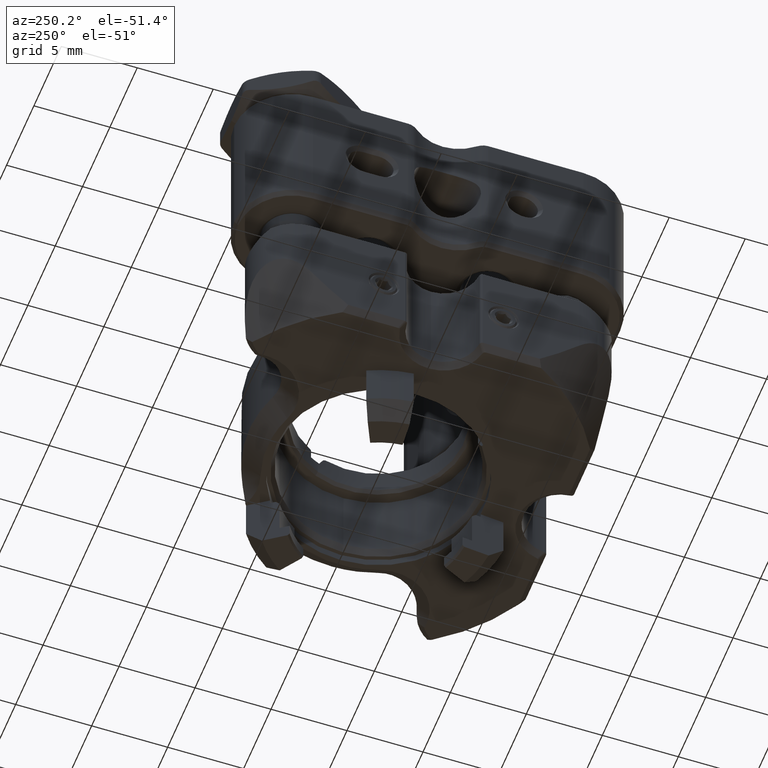
[diagram: clean part render]
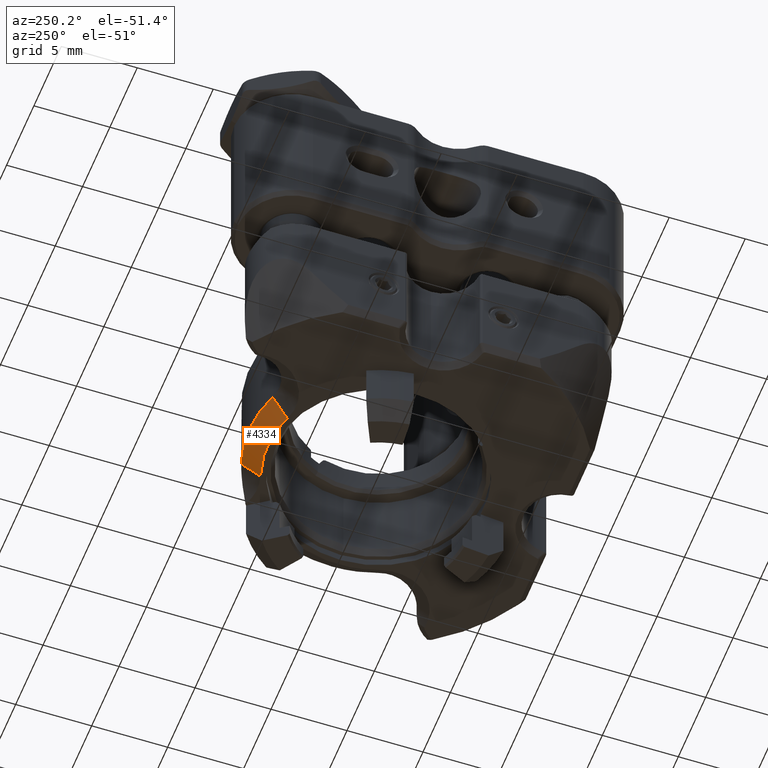
[diagram: same view with one face highlighted and labeled with its STEP entity id]
A machine part, auxiliary view. The second image highlights one B-rep face of the part: STEP entity #4334.
In plain terms, the highlighted face is a freeform B-spline surface patch.
Its self-contained STEP definition (entity closure, byte-faithful):
#80 = EDGE_LOOP ( 'NONE', ( #9677, #9014, #862, #12889 ) ) ;
#252 = CARTESIAN_POINT ( 'NONE',  ( -2.217990965958692051, 10.28925992224753649, 0.6828816415396518069 ) ) ;
#476 = CARTESIAN_POINT ( 'NONE',  ( -4.548259426275983230, 9.823417559774581420, 0.6828968990523115457 ) ) ;
#862 = ORIENTED_EDGE ( 'NONE', *, *, #875, .T. ) ;
#875 = EDGE_CURVE ( 'NONE', #15308, #6727, #12190, .T. ) ;
#881 = CARTESIAN_POINT ( 'NONE',  ( 0.2853970343089892170, 8.811679326182733973, 1.866899999999988013 ) ) ;
#1143 = CARTESIAN_POINT ( 'NONE',  ( -0.9979733131310214445, 9.065123467894492748, 1.866900000000005111 ) ) ;
#1193 = CARTESIAN_POINT ( 'NONE',  ( 1.761081315064200181, 11.66358740416938566, -1.308099999999951413 ) ) ;
#1296 = CARTESIAN_POINT ( 'NONE',  ( -4.320504478184080455, 9.901839877465969053, 0.6784670035059170434 ) ) ;
#1736 = CARTESIAN_POINT ( 'NONE',  ( -3.730594926594560157, 8.843909922356901987, 1.866899999999995563 ) ) ;
#2009 = CARTESIAN_POINT ( 'NONE',  ( -0.1349270293056910597, 8.919676375648553091, 1.866900000000012882 ) ) ;
#2084 = CARTESIAN_POINT ( 'NONE',  ( -2.362988505607624301, 9.084027184002549049, 1.866900000000006221 ) ) ;
#2169 = CARTESIAN_POINT ( 'NONE',  ( 1.204602745846881318, 10.10919601137224788, 0.3429000000000042570 ) ) ;
#2268 = CARTESIAN_POINT ( 'NONE',  ( -0.1349270293056913927, 8.919676375648551314, 1.866900000000004445 ) ) ;
#2342 = CARTESIAN_POINT ( 'NONE',  ( -1.254557659372109057, 10.28453546575927824, 0.6829036018526544183 ) ) ;
#2445 = VECTOR ( 'NONE', #12647, 1000.000000000000000 ) ;
#2537 = LINE ( 'NONE', #6368, #2445 ) ;
#2572 = CARTESIAN_POINT ( 'NONE',  ( -0.7761839495635659558, 10.24153473651399970, 0.6822515896997131124 ) ) ;
#2659 = CARTESIAN_POINT ( 'NONE',  ( -2.693195340204466159, 10.25096357718886075, 0.6821992226607210830 ) ) ;
#2926 = CARTESIAN_POINT ( 'NONE',  ( -4.018956716253071271, 8.750507744213882333, 1.866899999999997783 ) ) ;
#3297 = CARTESIAN_POINT ( 'NONE',  ( 1.090004933658522246, 9.789094101339115284, 0.6828968990523505145 ) ) ;
#3770 = CARTESIAN_POINT ( 'NONE',  ( -2.825789352589689774, 9.031824606264086341, 1.866899999999995119 ) ) ;
#4334 = ADVANCED_FACE ( 'NONE', ( #10526 ), #14470, .F. ) ;
#4414 = CARTESIAN_POINT ( 'NONE',  ( -3.282359656813834015, 8.950648278361187593, 1.866900000000000670 ) ) ;
#4495 = CARTESIAN_POINT ( 'NONE',  ( 1.040896855395677889, 10.16462014591518859, 0.3429000000000038684 ) ) ;
#4570 = CARTESIAN_POINT ( 'NONE',  ( -0.8341011717762030209, 10.58117806010155881, 0.3428999999999988169 ) ) ;
#4647 = CARTESIAN_POINT ( 'NONE',  ( -4.018956716253071271, 8.750507744213884109, 1.866900000000002002 ) ) ;
#4832 = CARTESIAN_POINT ( 'NONE',  ( -3.396191115844528596, 10.13508931598659224, 0.6818728438116777868 ) ) ;
#5229 = EDGE_CURVE ( 'NONE', #8213, #6727, #6776, .T. ) ;
#5698 = CARTESIAN_POINT ( 'NONE',  ( 0.7127323095001926179, 10.27572327051140633, 0.3429000000000030912 ) ) ;
#5773 = CARTESIAN_POINT ( 'NONE',  ( 0.5559593694894497951, 8.720071855187711662, 1.866899999999992898 ) ) ;
#6027 = CARTESIAN_POINT ( 'NONE',  ( -0.5633168964209411822, 9.005163656573071052, 1.866899999999993121 ) ) ;
#6029 = CARTESIAN_POINT ( 'NONE',  ( -4.548259426275983230, 9.823417559774581420, 0.6828968990523115457 ) ) ;
#6065 = DIRECTION ( 'NONE',  ( 0.2383342034394668463, 0.6657302813233646477, -0.7071067811865393571 ) ) ;
#6094 = CARTESIAN_POINT ( 'NONE',  ( 0.6909302204154994520, 8.674373187251783079, 1.866899999999993787 ) ) ;
#6255 = CARTESIAN_POINT ( 'NONE',  ( -1.898199977877247813, 9.106971716330461319, 1.866899999999993787 ) ) ;
#6368 = CARTESIAN_POINT ( 'NONE',  ( -5.196464612230376368, 11.70594211178919153, -1.308099999999962293 ) ) ;
#6727 = VERTEX_POINT ( 'NONE', #3297 ) ;
#6741 = CARTESIAN_POINT ( 'NONE',  ( -0.5633168964209415153, 9.005163656573069275, 1.866899999999993565 ) ) ;
#6776 = B_SPLINE_CURVE_WITH_KNOTS ( 'NONE', 3,
 ( #6029, #1296, #13659, #9887, #4832, #2659, #252, #2342, #2572, #14705, #8591, #11008, #13506, #7461 ),
 .UNSPECIFIED., .F., .F.,
 ( 4, 2, 2, 2, 2, 2, 4 ),
 ( 4.336808689942017736E-18, 0.0007124814486855053598, 0.001424962897371007684, 0.002849925794742012332, 0.004274888692113017197, 0.004987370140798520063, 0.005699851589484022929 ),
 .UNSPECIFIED. ) ;
#6893 = CARTESIAN_POINT ( 'NONE',  ( 0.6909302204154992300, 8.674373187251783079, 1.866899999999996007 ) ) ;
#6971 = CARTESIAN_POINT ( 'NONE',  ( -1.898199977877248479, 9.106971716330463096, 1.866899999999996673 ) ) ;
#7461 = CARTESIAN_POINT ( 'NONE',  ( 1.090004933658522246, 9.789094101339115284, 0.6828968990523505145 ) ) ;
#7520 = VERTEX_POINT ( 'NONE', #9242 ) ;
#8213 = VERTEX_POINT ( 'NONE', #476 ) ;
#8591 = CARTESIAN_POINT ( 'NONE',  ( 0.1698756059891217141, 10.06452244423931042, 0.6824680708776812432 ) ) ;
#8953 = EDGE_CURVE ( 'NONE', #7520, #15308, #10162, .T. ) ;
#9014 = ORIENTED_EDGE ( 'NONE', *, *, #8953, .T. ) ;
#9223 = CARTESIAN_POINT ( 'NONE',  ( -2.825789352589690218, 9.031824606264086341, 1.866899999999999116 ) ) ;
#9242 = CARTESIAN_POINT ( 'NONE',  ( -4.162785721828899277, 8.703920634261359979, 1.866900000000000226 ) ) ;
#9312 = CARTESIAN_POINT ( 'NONE',  ( -4.658951589221609346, 10.14489094347473852, 0.3429000000000019255 ) ) ;
#9465 = CARTESIAN_POINT ( 'NONE',  ( -0.3102867686213292009, 10.50892115175349417, 0.3429000000000022585 ) ) ;
#9677 = ORIENTED_EDGE ( 'NONE', *, *, #9985, .F. ) ;
#9887 = CARTESIAN_POINT ( 'NONE',  ( -3.628904713558260386, 10.08667199295976680, 0.6826927958947750508 ) ) ;
#9985 = EDGE_CURVE ( 'NONE', #7520, #8213, #2537, .T. ) ;
#10162 = B_SPLINE_CURVE_WITH_KNOTS ( 'NONE', 3,
 ( #10708, #2926, #1736, #15840, #3770, #11171, #6255, #12292, #1143, #6027, #2268, #11090, #12374, #6094 ),
 .UNSPECIFIED., .F., .F.,
 ( 4, 1, 1, 1, 1, 1, 1, 1, 1, 1, 1, 4 ),
 ( 0.000000000000000000, 0.09229238073140491605, 0.1850363629575616786, 0.2782557791087879040, 0.3719712179321335577, 0.4662075626710504572, 0.5607640757499309236, 0.6494879985155634916, 0.7377545865488489563, 0.8255834482975537014, 0.9129917681144904540, 1.000000000000000000 ),
 .UNSPECIFIED. ) ;
#10526 = FACE_OUTER_BOUND ( 'NONE', #80, .T. ) ;
#10688 = CARTESIAN_POINT ( 'NONE',  ( -1.373828732315301782, 10.62332817842469446, 0.3429000000000011483 ) ) ;
#10708 = CARTESIAN_POINT ( 'NONE',  ( -4.162785721828899277, 8.703920634261359979, 1.866900000000000226 ) ) ;
#11008 = CARTESIAN_POINT ( 'NONE',  ( 0.6338275090885910901, 9.941563049410031994, 0.6831213702255044540 ) ) ;
#11052 = VECTOR ( 'NONE', #6065, 1000.000000000000114 ) ;
#11090 = CARTESIAN_POINT ( 'NONE',  ( 0.2853970343089888284, 8.811679326182735750, 1.866899999999984017 ) ) ;
#11171 = CARTESIAN_POINT ( 'NONE',  ( -2.362988505607625633, 9.084027184002550825, 1.866900000000000226 ) ) ;
#11653 = CARTESIAN_POINT ( 'NONE',  ( 0.2057531191492771305, 10.40593295462529078, 0.3429000000000008708 ) ) ;
#11731 = CARTESIAN_POINT ( 'NONE',  ( -4.134805098665784939, 10.31465217499279241, 0.3429000000000013149 ) ) ;
#11886 = CARTESIAN_POINT ( 'NONE',  ( -4.162785721828891283, 8.703920634261363531, 1.866900000000002668 ) ) ;
#12190 = LINE ( 'NONE', #1193, #11052 ) ;
#12292 = CARTESIAN_POINT ( 'NONE',  ( -1.444960255202452304, 9.099987269601225393, 1.866899999999996673 ) ) ;
#12374 = CARTESIAN_POINT ( 'NONE',  ( 0.5559593694894494620, 8.720071855187708110, 1.866899999999989124 ) ) ;
#12647 = DIRECTION ( 'NONE',  ( -0.2302114497550490080, 0.6685825965441252183, -0.7071067811865433539 ) ) ;
#12889 = ORIENTED_EDGE ( 'NONE', *, *, #5229, .F. ) ;
#12934 = CARTESIAN_POINT ( 'NONE',  ( -0.9979733131310214445, 9.065123467894492748, 1.866900000000011994 ) ) ;
#13079 = CARTESIAN_POINT ( 'NONE',  ( -3.730594926594560601, 8.843909922356905540, 1.866900000000000226 ) ) ;
#13161 = CARTESIAN_POINT ( 'NONE',  ( -2.486531491752181466, 10.60402110774894346, 0.3428999999999998716 ) ) ;
#13506 = CARTESIAN_POINT ( 'NONE',  ( 0.8632240681688518880, 9.870282592306299563, 0.6787203489163813330 ) ) ;
#13659 = CARTESIAN_POINT ( 'NONE',  ( -4.091061266293261056, 9.970046516203384002, 0.6830113426392075970 ) ) ;
#14129 = CARTESIAN_POINT ( 'NONE',  ( -4.484520598686918547, 10.20138587437980249, 0.3429000000000017034 ) ) ;
#14218 = CARTESIAN_POINT ( 'NONE',  ( -3.594325844261066383, 10.44329794491078012, 0.3429000000000020365 ) ) ;
#14453 = CARTESIAN_POINT ( 'NONE',  ( -1.924531790078196636, 10.63181596547266139, 0.3429000000000019255 ) ) ;
#14470 = B_SPLINE_SURFACE_WITH_KNOTS ( 'NONE', 1, 3, ( 
 ( #11886, #4647, #13079, #4414, #9223, #2084, #6971, #15427, #12934, #6741, #2009, #881, #5773, #6893 ),
 ( #9312, #14129, #11731, #14218, #15583, #13161, #14453, #10688, #4570, #9465, #11653, #5698, #4495, #2169 ) ),
 .UNSPECIFIED., .F., .F., .F.,
 ( 2, 2 ),
 ( 4, 1, 1, 1, 1, 1, 1, 1, 1, 1, 1, 4 ),
 ( 0.000000000000000000, 1.000000000000000000 ),
 ( 0.000000000000000000, 0.09229238073140491605, 0.1850363629575616786, 0.2782557791087879040, 0.3719712179321335577, 0.4662075626710504572, 0.5607640757499309236, 0.6494879985155634916, 0.7377545865488489563, 0.8255834482975537014, 0.9129917681144904540, 1.000000000000000000 ),
 .UNSPECIFIED. ) ;
#14705 = CARTESIAN_POINT ( 'NONE',  ( -0.06468222892899773424, 10.11620225672806761, 0.6819189105264306106 ) ) ;
#15049 = CARTESIAN_POINT ( 'NONE',  ( 0.6909302204154994520, 8.674373187251783079, 1.866899999999993787 ) ) ;
#15308 = VERTEX_POINT ( 'NONE', #15049 ) ;
#15427 = CARTESIAN_POINT ( 'NONE',  ( -1.444960255202451860, 9.099987269601221840, 1.866899999999998006 ) ) ;
#15583 = CARTESIAN_POINT ( 'NONE',  ( -3.044375487531011171, 10.54108803692792407, 0.3429000000000026471 ) ) ;
#15840 = CARTESIAN_POINT ( 'NONE',  ( -3.282359656813834903, 8.950648278361187593, 1.866899999999997339 ) ) ;